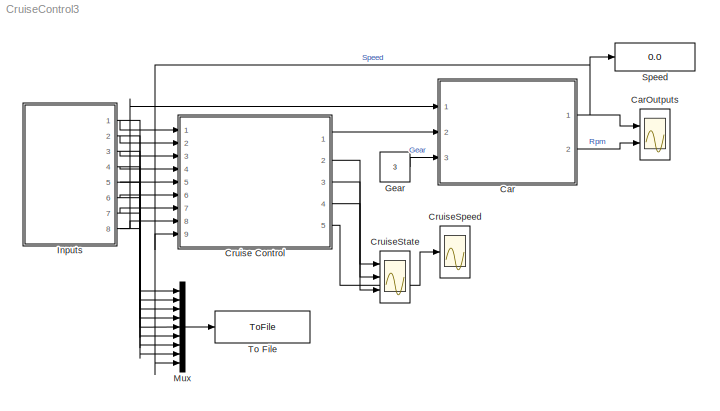
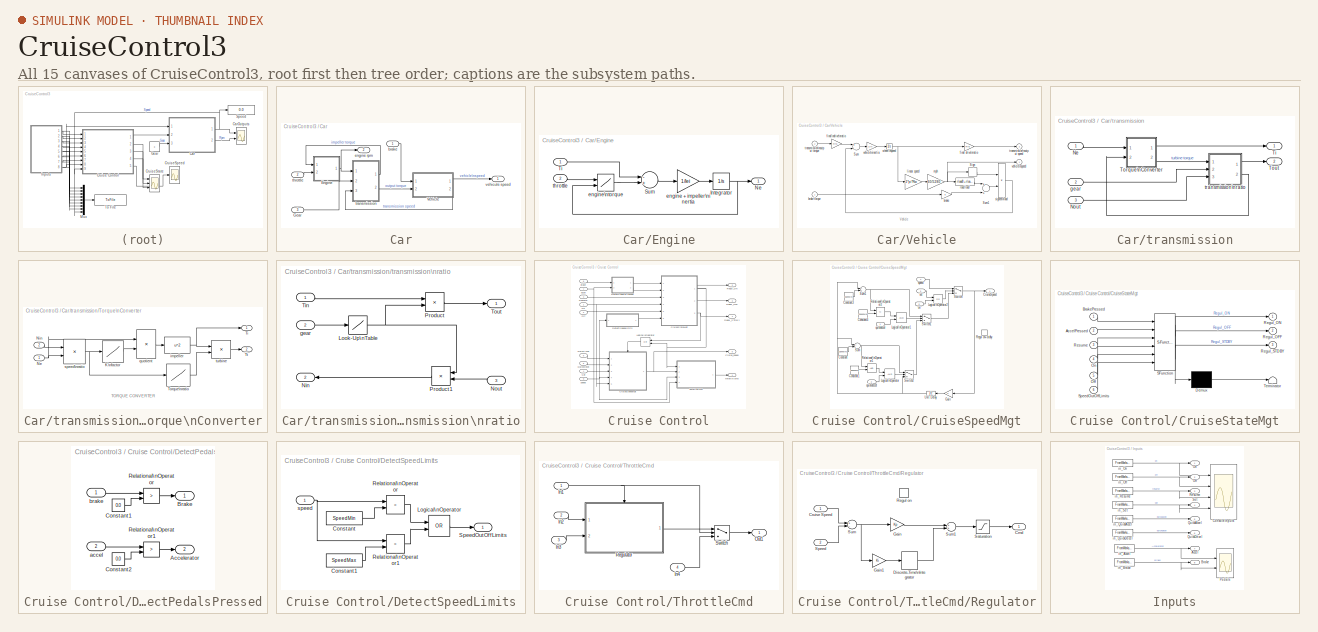
[diagram: thumbnail index - all 15 canvases of the model, root first then tree order]
MODEL CruiseControl3
KIND model
CONFIG AbsTol = auto
CONFIG FixedStep = auto
CONFIG MaxStep = auto
CONFIG MinStep = auto
CONFIG PreLoadFcn = load cruise_data;
CONFIG RelTol = 1e-3
CONFIG Solver = ode45
CONFIG SolverMode = SingleTasking
CONFIG StartTime = 0.0
CONFIG StopTime = 150.0
BLOCK [SubSystem] Car
  MaskDisplay = plot([cos(pi*[0:5:360]/180) + 6], [sin(pi*[0:5:360]/180) + 1.5],[cos(pi*[0:5:360]/180) + 1], [sin(pi*[0:5:360]/180) + 4], [10 7.5 6.75], [3.5 1 1.5], [10 9.75 7.5 6.25 3 1.5 4 5 7.5], [3.5 4.75 5.5 7 8 7 6 4 5.5], [6.5 4], [7 6], [5.25 2], [2 4], [7.5 1 0], [2.5 6 6.5], [7.5 7.25 9.75], [1 2.25 4.75], [2.75 2 0 0 0.25], [7.5 8 6.5 5.25 5], [1.5 0.5], [6.75 6.25])
  MaskIconFrame = on
  MaskIconOpaque = on
  MaskIconRotate = port
  MaskIconUnits = autoscale
  Ports = [3, 2]
  TreatAsAtomicUnit = off
BLOCK [SubSystem] Car/Engine
  Ports = [2, 1]
  TreatAsAtomicUnit = off
BLOCK [Integrator] Car/Engine/Integrator
  InitialCondition = 1000
  LimitOutput = on
  LowerSaturationLimit = 600
  Ports = [1, 1]
  UpperSaturationLimit = 6000
BLOCK [Outport] Car/Engine/Ne
  InitialOutput = 0
BLOCK [Sum] Car/Engine/Sum
  Inputs = -+
  Ports = [2, 1]
BLOCK [Inport] Car/Engine/Ti
BLOCK [Gain] Car/Engine/engine + impeller\ninertia
  Gain = 1/Iei
BLOCK [Lookup2D] Car/Engine/engine\ntorque
  ColumnIndex = nevec
  OutputValues = emap
  RowIndex = thvec
BLOCK [Inport] Car/Engine/throttle
  Port = 2
BLOCK [Inport] Car/Gear
  Port = 3
BLOCK [SubSystem] Car/Vehicle
  MaskCallbackString = |||||
  MaskDescription = vehicle dynamics: torque input from trans., outputs are input speed (transmission output) and vehicle speed
  MaskDisplay = plot([cos(pi*[0:5:360]/180) + 6], [sin(pi*[0:5:360]/180) + 1.5],[cos(pi*[0:5:360]/180) + 1], [sin(pi*[0:5:360]/180) + 4], [10 7.5 6.75], [3.5 1 1.5], [10 9.75 7.5 6.25 3 1.5 4 5 7.5], [3.5 4.75 5.5 7 8 7 6 4 5.5], [6.5 4], [7 6], [5.25 2], [2 4], [7.5 1 0], [2.5 6 6.5], [7.5 7.25 9.75], [1 2.25 4.75], [2.75 2 0 0 0.25], [7.5 8 6.5 5.25 5], [1.5 0.5], [6.75 6.25])
  MaskEnableString = on,on,on,on,on,on
  MaskIconFrame = on
  MaskIconOpaque = on
  MaskIconRotate = port
  MaskIconUnits = autoscale
  MaskPromptString = final drive ratio | drag friction at wheels | aerodynamic drag | wheel radius | vehicle inertia | initial transmission output speed
  MaskStyleString = edit,edit,edit,edit,edit,edit
  MaskToolTipString = on,on,on,on,on,on
  MaskTunableValueString = on,on,on,on,on,on
  MaskType = vehicle model
  MaskValueString = 3.23|40|0.02|1|12.0941|0
  MaskVarAliasString = ,,,,,
  MaskVariables = Rfd=@1;rload0=@2;rload2=@3;Rw=@4;Iv=@5;N20=@6;
  MaskVisibilityString = on,on,on,on,on,on
  Ports = [2, 2]
  ShowPortLabels = off
  TreatAsAtomicUnit = off
BLOCK [Signum] Car/Vehicle/Sign
BLOCK [Sum] Car/Vehicle/Sum
  Inputs = +-
  Ports = [2, 1]
BLOCK [Sum] Car/Vehicle/Sum1
  Ports = [2, 1]
BLOCK [Gain] Car/Vehicle/brake
  Gain = 5
BLOCK [Inport] Car/Vehicle/brake torque
BLOCK [Gain] Car/Vehicle/final drive\nratio
  Gain = Rfd
BLOCK [Gain] Car/Vehicle/final\ndrive\nratio
  Gain = Rfd
BLOCK [Gain] Car/Vehicle/linear speed
  Gain = 2*pi*Rw
BLOCK [Gain] Car/Vehicle/mph
  Gain = 60/5280
BLOCK [Fcn] Car/Vehicle/road load
  Expr = rload0 + rload2*u^2
BLOCK [Product] Car/Vehicle/signed\nload
  Ports = [2, 1]
BLOCK [Outport] Car/Vehicle/transmission\noutput speed
  InitialOutput = 0
  Port = 2
BLOCK [Inport] Car/Vehicle/transmission\noutput torque
  Port = 2
BLOCK [Gain] Car/Vehicle/vehicle\ninertia
  Gain = 1/Iv
BLOCK [Outport] Car/Vehicle/vehicle\nspeed
  InitialOutput = 0
BLOCK [Integrator] Car/Vehicle/wheel\nspeed
  InitialCondition = N20/Rfd
  Ports = [1, 1]
BLOCK [Inport] Car/brake
BLOCK [Outport] Car/engine rpm
  Port = 2
BLOCK [Inport] Car/throttle
  Port = 2
BLOCK [SubSystem] Car/transmission
  Ports = [3, 2]
  TreatAsAtomicUnit = off
BLOCK [Inport] Car/transmission/Ne
BLOCK [Inport] Car/transmission/Nout
  Port = 3
BLOCK [Outport] Car/transmission/Ti
  InitialOutput = 0
BLOCK [SubSystem] Car/transmission/Torque\nConverter
  MaskCallbackString = ||
  MaskDescription = torque converter
  MaskDisplay = plot([cos([90:10:450]*pi/180),.63*cos([90:10:450]*pi/180),.63*cos([90:10:240]*pi/180),cos([240:10:300]*pi/180),.63*cos([300]*pi/180)],[sin([90:10:450]*pi/180),.63*sin([90:10:450]*pi/180)+.1,.63*sin([90:10:240]*pi/180)+.1,sin([240:10:300]*pi/180),.63*sin([300]*pi/180)+.1])
  MaskEnableString = on,on,on
  MaskHelp = Torque converter input and output torques are computed as a function of the input and output speeds
  MaskIconFrame = on
  MaskIconOpaque = on
  MaskIconRotate = none
  MaskIconUnits = autoscale
  MaskPromptString = speed ratio | K factor | torque ratio
  MaskStyleString = edit,edit,edit
  MaskToolTipString = on,on,on
  MaskTunableValueString = on,on,on
  MaskType = torque converter
  MaskValueString = [0    0.1000    0.2000    0.3000    0.4000    0.5000    0.6000 0.7000    0.8000    0.8100    0.8200    0.8300    0.8400    0.8500 0.8600    0.8700    0.8800    0.8900    0.9000    0.9200    0.9400]|[137.4652  137.0650  135.8644  135.6644  137.5653  140.3666  145.2689 152.8725  162.9773  164.2779  166.1788  167.9797  170.0807  172.7820 175.3832  179.5852  183.5871  189.8901  197.6938  215.9024  244...<+209ch>
  MaskVarAliasString = ,,
  MaskVariables = speedratio=@1;Kfactor=@2;Torkratio=@3;
  MaskVisibilityString = on,on,on
  Ports = [2, 2]
  ShowPortLabels = off
  TreatAsAtomicUnit = off
BLOCK [Lookup] Car/transmission/Torque\nConverter/K\nfactor
  InputValues = speedratio
  OutputValues = Kfactor
BLOCK [Inport] Car/transmission/Torque\nConverter/Ne
BLOCK [Inport] Car/transmission/Torque\nConverter/Nin
  Port = 2
BLOCK [Outport] Car/transmission/Torque\nConverter/Ti
  InitialOutput = 0
BLOCK [Lookup] Car/transmission/Torque\nConverter/Torque\nratio
  InputValues = speedratio
  OutputValues = Torkratio
BLOCK [Outport] Car/transmission/Torque\nConverter/Tt
  InitialOutput = 0
  Port = 2
BLOCK [Fcn] Car/transmission/Torque\nConverter/impeller
  Expr = u^2
BLOCK [Product] Car/transmission/Torque\nConverter/quotient
  Inputs = */
  Ports = [2, 1]
BLOCK [Product] Car/transmission/Torque\nConverter/speed\nratio
  Inputs = */
  Ports = [2, 1]
BLOCK [Product] Car/transmission/Torque\nConverter/turbine
  Ports = [2, 1]
BLOCK [Outport] Car/transmission/Tout
  InitialOutput = 0
  Port = 2
BLOCK [Inport] Car/transmission/gear
  Port = 2
BLOCK [SubSystem] Car/transmission/transmission\nratio
  Ports = [3, 2]
  TreatAsAtomicUnit = off
BLOCK [Lookup] Car/transmission/transmission\nratio/Look-Up\nTable
  InputValues = [1 2 3 4]
  OutputValues = [2.393 1.45 1.0 0.677]
BLOCK [Outport] Car/transmission/transmission\nratio/Nin
  InitialOutput = 0
  Port = 2
BLOCK [Inport] Car/transmission/transmission\nratio/Nout
  Port = 3
BLOCK [Product] Car/transmission/transmission\nratio/Product
  Ports = [2, 1]
BLOCK [Product] Car/transmission/transmission\nratio/Product1
  Ports = [2, 1]
BLOCK [Inport] Car/transmission/transmission\nratio/Tin
BLOCK [Outport] Car/transmission/transmission\nratio/Tout
  InitialOutput = 0
BLOCK [Inport] Car/transmission/transmission\nratio/gear
  Port = 2
BLOCK [Outport] Car/vehicule speed
BLOCK [Scope] CarOutputs
  DataFormat = Array
  LimitDataPoints = off
  NumInputPorts = 2
  Ports = [2]
  TickLabels = on
  YMax = 150~6000
  YMin = -25~500
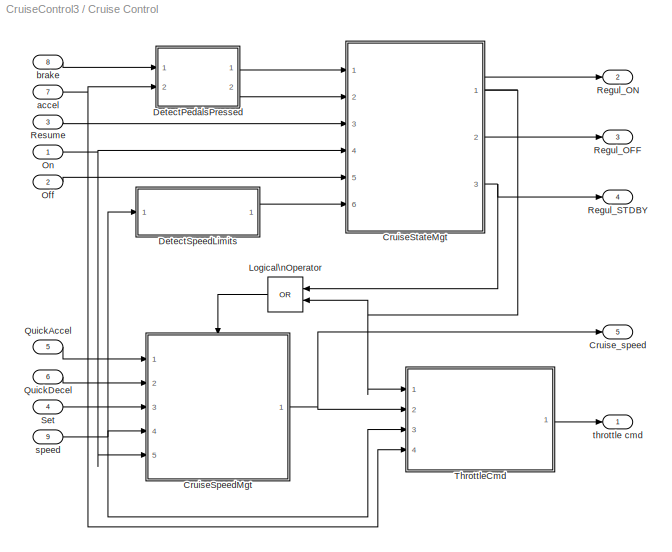
BLOCK [SubSystem] Cruise Control
  Ports = [9, 5]
  TreatAsAtomicUnit = off
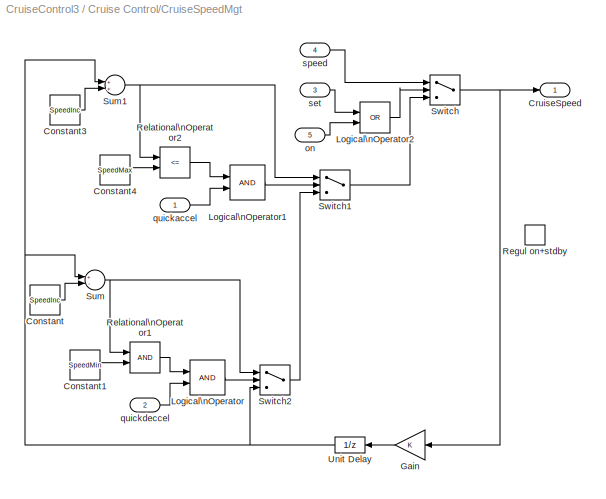
BLOCK [SubSystem] Cruise Control/CruiseSpeedMgt
  Ports = [5, 1, 1]
  TreatAsAtomicUnit = on
BLOCK [Constant] Cruise Control/CruiseSpeedMgt/Constant
  Value = SpeedInc
BLOCK [Constant] Cruise Control/CruiseSpeedMgt/Constant1
  Value = SpeedMin
BLOCK [Constant] Cruise Control/CruiseSpeedMgt/Constant3
  Value = SpeedInc
BLOCK [Constant] Cruise Control/CruiseSpeedMgt/Constant4
  Value = SpeedMax
BLOCK [Outport] Cruise Control/CruiseSpeedMgt/CruiseSpeed
BLOCK [Gain] Cruise Control/CruiseSpeedMgt/Gain
BLOCK [Logic] Cruise Control/CruiseSpeedMgt/Logical\nOperator
  Ports = [2, 1]
BLOCK [Logic] Cruise Control/CruiseSpeedMgt/Logical\nOperator1
  Ports = [2, 1]
BLOCK [Logic] Cruise Control/CruiseSpeedMgt/Logical\nOperator2
  Operator = OR
  Ports = [2, 1]
BLOCK [EnablePort] Cruise Control/CruiseSpeedMgt/Regul on+stdby
  Ports = []
BLOCK [RelationalOperator] Cruise Control/CruiseSpeedMgt/Relational\nOperator1
BLOCK [RelationalOperator] Cruise Control/CruiseSpeedMgt/Relational\nOperator2
  Operator = <=
BLOCK [Sum] Cruise Control/CruiseSpeedMgt/Sum
  Inputs = +-
  Ports = [2, 1]
BLOCK [Sum] Cruise Control/CruiseSpeedMgt/Sum1
  Ports = [2, 1]
BLOCK [Switch] Cruise Control/CruiseSpeedMgt/Switch
  Threshold = 0.5
BLOCK [Switch] Cruise Control/CruiseSpeedMgt/Switch1
  Threshold = 0.5
BLOCK [Switch] Cruise Control/CruiseSpeedMgt/Switch2
  Threshold = 0.5
BLOCK [UnitDelay] Cruise Control/CruiseSpeedMgt/Unit Delay
  SampleTime = 0.1
BLOCK [Inport] Cruise Control/CruiseSpeedMgt/on
  Port = 5
BLOCK [Inport] Cruise Control/CruiseSpeedMgt/quickaccel
BLOCK [Inport] Cruise Control/CruiseSpeedMgt/quickdeccel
  Port = 2
BLOCK [Inport] Cruise Control/CruiseSpeedMgt/set
  Port = 3
BLOCK [Inport] Cruise Control/CruiseSpeedMgt/speed
  Port = 4
BLOCK [SubSystem] Cruise Control/CruiseStateMgt
  MaskDescription = Stateflow diagram
  MaskDisplay = plot(sf('Private','sfblk','xIcon'),sf('Private','sfblk','yIcon'));text(0.5,0,sf('Private', 'sfblk', 'tIcon'),'HorizontalAl','Center','VerticalAl','Bottom');
  MaskIconFrame = off
  MaskIconOpaque = off
  MaskIconRotate = none
  MaskIconUnits = autoscale
  MaskSelfModifiable = on
  MaskType = Stateflow
  Ports = [6, 3]
  TreatAsAtomicUnit = off
BLOCK [Demux] Cruise Control/CruiseStateMgt/ Demux 
  Outputs = 1
  Ports = [1, 1]
BLOCK [S-Function] Cruise Control/CruiseStateMgt/ SFunction 
  FunctionName = sf_sfun
  PortCounts = [6 4]
  Ports = [6, 4]
  Tag = Stateflow S-Function CruiseControl3 1
BLOCK [Terminator] Cruise Control/CruiseStateMgt/ Terminator 
BLOCK [Inport] Cruise Control/CruiseStateMgt/AccelPressed
  Port = 2
  PortDimensions = 1
BLOCK [Inport] Cruise Control/CruiseStateMgt/BrakePressed
  PortDimensions = 1
BLOCK [Inport] Cruise Control/CruiseStateMgt/Off
  Port = 5
  PortDimensions = 1
BLOCK [Inport] Cruise Control/CruiseStateMgt/On
  Port = 4
  PortDimensions = 1
BLOCK [Outport] Cruise Control/CruiseStateMgt/Regul_OFF
  Port = 2
BLOCK [Outport] Cruise Control/CruiseStateMgt/Regul_ON
BLOCK [Outport] Cruise Control/CruiseStateMgt/Regul_STDBY
  Port = 3
BLOCK [Inport] Cruise Control/CruiseStateMgt/Resume
  Port = 3
  PortDimensions = 1
BLOCK [Inport] Cruise Control/CruiseStateMgt/SpeedOutOffLimits
  Port = 6
  PortDimensions = 1
BLOCK [Outport] Cruise Control/Cruise_speed
  Port = 5
BLOCK [SubSystem] Cruise Control/DetectPedalsPressed
  Ports = [2, 2]
  TreatAsAtomicUnit = off
BLOCK [Outport] Cruise Control/DetectPedalsPressed/Accelerator
  Port = 2
BLOCK [Outport] Cruise Control/DetectPedalsPressed/Brake
BLOCK [Constant] Cruise Control/DetectPedalsPressed/Constant1
  Value = 0.0
BLOCK [Constant] Cruise Control/DetectPedalsPressed/Constant2
  Value = 0.0
BLOCK [RelationalOperator] Cruise Control/DetectPedalsPressed/Relational\nOperator
  Operator = >
BLOCK [RelationalOperator] Cruise Control/DetectPedalsPressed/Relational\nOperator1
  Operator = >
BLOCK [Inport] Cruise Control/DetectPedalsPressed/accel
  Port = 2
BLOCK [Inport] Cruise Control/DetectPedalsPressed/brake
BLOCK [SubSystem] Cruise Control/DetectSpeedLimits
  Ports = [1, 1]
  TreatAsAtomicUnit = off
BLOCK [Constant] Cruise Control/DetectSpeedLimits/Constant
  Value = SpeedMin
BLOCK [Constant] Cruise Control/DetectSpeedLimits/Constant1
  Value = SpeedMax
BLOCK [Logic] Cruise Control/DetectSpeedLimits/Logical\nOperator
  Operator = OR
  Ports = [2, 1]
BLOCK [RelationalOperator] Cruise Control/DetectSpeedLimits/Relational\nOperator
  Operator = <
BLOCK [RelationalOperator] Cruise Control/DetectSpeedLimits/Relational\nOperator1
  Operator = >
BLOCK [Outport] Cruise Control/DetectSpeedLimits/SpeedOutOffLimits
BLOCK [Inport] Cruise Control/DetectSpeedLimits/speed
BLOCK [Logic] Cruise Control/Logical\nOperator
  Operator = OR
  Ports = [2, 1]
BLOCK [Inport] Cruise Control/Off
  Port = 2
  SampleTime = Ts
BLOCK [Inport] Cruise Control/On
  SampleTime = Ts
BLOCK [Inport] Cruise Control/QuickAccel
  Port = 5
  SampleTime = Ts
BLOCK [Inport] Cruise Control/QuickDecel
  Port = 6
  SampleTime = Ts
BLOCK [Outport] Cruise Control/Regul_OFF
  Port = 3
BLOCK [Outport] Cruise Control/Regul_ON
  Port = 2
BLOCK [Outport] Cruise Control/Regul_STDBY
  Port = 4
BLOCK [Inport] Cruise Control/Resume
  Port = 3
  SampleTime = Ts
BLOCK [Inport] Cruise Control/Set
  Port = 4
  SampleTime = Ts
BLOCK [SubSystem] Cruise Control/ThrottleCmd
  Ports = [4, 1]
  TreatAsAtomicUnit = off
BLOCK [Inport] Cruise Control/ThrottleCmd/In1
BLOCK [Inport] Cruise Control/ThrottleCmd/In2
  Port = 2
BLOCK [Inport] Cruise Control/ThrottleCmd/In3
  Port = 3
BLOCK [Inport] Cruise Control/ThrottleCmd/In4
  Port = 4
BLOCK [Outport] Cruise Control/ThrottleCmd/Out1
BLOCK [SubSystem] Cruise Control/ThrottleCmd/Regulator
  Ports = [2, 1, 1]
  TreatAsAtomicUnit = on
BLOCK [Outport] Cruise Control/ThrottleCmd/Regulator/Cmd
BLOCK [Inport] Cruise Control/ThrottleCmd/Regulator/Cruise Speed
BLOCK [DiscreteIntegrator] Cruise Control/ThrottleCmd/Regulator/Discrete-Time\nIntegrator
  ExternalReset = none
  InitialConditionSource = internal
  IntegratorMethod = Forward Euler
  LimitOutput = on
  LowerSaturationLimit = -10
  Ports = [1, 1]
  SampleTime = 0.1
  UpperSaturationLimit = 200
BLOCK [Gain] Cruise Control/ThrottleCmd/Regulator/Gain
  Gain = Kp
BLOCK [Gain] Cruise Control/ThrottleCmd/Regulator/Gain1
  Gain = Ki
BLOCK [EnablePort] Cruise Control/ThrottleCmd/Regulator/Regul on
  Ports = []
BLOCK [Saturate] Cruise Control/ThrottleCmd/Regulator/Saturation
  LowerLimit = 0
  UpperLimit = 50
BLOCK [Inport] Cruise Control/ThrottleCmd/Regulator/Speed
  Port = 2
BLOCK [Sum] Cruise Control/ThrottleCmd/Regulator/Sum
  Inputs = +-
  Ports = [2, 1]
BLOCK [Sum] Cruise Control/ThrottleCmd/Regulator/Sum1
  Ports = [2, 1]
BLOCK [Switch] Cruise Control/ThrottleCmd/Switch
  Threshold = 0.5
BLOCK [Inport] Cruise Control/accel
  Port = 7
  SampleTime = Ts
BLOCK [Inport] Cruise Control/brake
  Port = 8
  SampleTime = Ts
BLOCK [Inport] Cruise Control/speed
  Port = 9
  SampleTime = Ts
BLOCK [Outport] Cruise Control/throttle cmd
BLOCK [Scope] CruiseSpeed
  DataFormat = Array
  LimitDataPoints = off
  NumInputPorts = 1
  Ports = [1]
  TickLabels = on
  YMax = 150
  YMin = -25
BLOCK [Scope] CruiseState
  DataFormat = Array
  LimitDataPoints = off
  NumInputPorts = 3
  Ports = [3]
  TickLabels = on
  YMax = 2~2~2
  YMin = -1~-1~-1
BLOCK [Constant] Gear
  Value = 3
BLOCK [SubSystem] Inputs
  Ports = [0, 8]
  TreatAsAtomicUnit = off
BLOCK [Outport] Inputs/Accel
  Port = 7
BLOCK [Outport] Inputs/Brake
  Port = 8
BLOCK [Scope] Inputs/ConsoleInputs
  DataFormat = StructureWithTime
  NumInputPorts = 4
  Ports = [4]
  SaveName = ScopeData1
  TickLabels = on
  YMax = 5~5~5~5
  YMin = -5~-5~-5~-5
BLOCK [Outport] Inputs/Off
  Port = 2
BLOCK [Outport] Inputs/On
BLOCK [Scope] Inputs/Pedals
  DataFormat = StructureWithTime
  NumInputPorts = 2
  Ports = [2]
  SaveName = ScopeData2
  TickLabels = on
  YMax = 100~1
  YMin = -900~-1
BLOCK [Outport] Inputs/QuickAccel
  Port = 5
BLOCK [Outport] Inputs/QuickDecel
  Port = 6
BLOCK [Outport] Inputs/Resume
  Port = 3
BLOCK [Outport] Inputs/Set
  Port = 4
BLOCK [FromWorkspace] Inputs/in_Accel
  OutputAfterFinalValue = Holding final value
  SampleTime = 0.2
  VariableName = [0 0;15 100;25 100;26 0;80 0;85 50;90 50;95 0]
BLOCK [FromWorkspace] Inputs/in_Brake
  Interpolate = off
  OutputAfterFinalValue = Holding final value
  SampleTime = 0.2
  VariableName = [0 0;45 50;55 0]
BLOCK [FromWorkspace] Inputs/in_Off
  Interpolate = off
  OutputAfterFinalValue = Holding final value
  SampleTime = 0.2
  VariableName = [0 0]
BLOCK [FromWorkspace] Inputs/in_On
  Interpolate = off
  OutputAfterFinalValue = Holding final value
  SampleTime = 0.2
  VariableName = [0 0;20 1;21 0]
BLOCK [FromWorkspace] Inputs/in_QuickAccel
  Interpolate = off
  OutputAfterFinalValue = Holding final value
  SampleTime = 0.2
  VariableName = [0 0]
BLOCK [FromWorkspace] Inputs/in_QuickDecel
  Interpolate = off
  OutputAfterFinalValue = Holding final value
  SampleTime = 0.2
  VariableName = [0 0]
BLOCK [FromWorkspace] Inputs/in_Resume
  Interpolate = off
  OutputAfterFinalValue = Holding final value
  SampleTime = 0.2
  VariableName = [0 0;70 1;71 0]
BLOCK [FromWorkspace] Inputs/in_Set
  Interpolate = off
  OutputAfterFinalValue = Holding final value
  SampleTime = 0.2
  VariableName = [0 0;60 1;61 0]
BLOCK [Mux] Mux
  DisplayOption = bar
  Inputs = 9
  Ports = [9, 1]
BLOCK [Display] Speed
  Decimation = 1
  Ports = [1]
BLOCK [ToFile] To File
  Filename = scenario_smlk.mat
  SampleTime = 0.3333
ANNOTATION Car/Vehicle: Vehicle
ANNOTATION Car/transmission/Torque\nConverter: TORQUE CONVERTER
NET Car/Engine/Integrator:1 -> Car/Engine/Ne:1, Car/Engine/engine\ntorque:2
LINE Car/Engine/Sum:1 -> Car/Engine/engine + impeller\ninertia:1
LINE Car/Engine/Ti:1 -> Car/Engine/Sum:1
LINE Car/Engine/engine + impeller\ninertia:1 -> Car/Engine/Integrator:1
LINE Car/Engine/engine\ntorque:1 -> Car/Engine/Sum:2
LINE Car/Engine/throttle:1 -> Car/Engine/engine\ntorque:1
NET Car/Engine:1 -> Car/engine rpm:1, Car/transmission:1
LINE Car/Gear:1 -> Car/transmission:2
LINE Car/Vehicle/Sign:1 -> Car/Vehicle/signed\nload:1
LINE Car/Vehicle/Sum1:1 -> Car/Vehicle/signed\nload:2
LINE Car/Vehicle/Sum:1 -> Car/Vehicle/vehicle\ninertia:1
LINE Car/Vehicle/brake torque:1 -> Car/Vehicle/brake:1
LINE Car/Vehicle/brake:1 -> Car/Vehicle/Sum1:2
LINE Car/Vehicle/final drive\nratio:1 -> Car/Vehicle/transmission\noutput speed:1
LINE Car/Vehicle/final\ndrive\nratio:1 -> Car/Vehicle/Sum:1
LINE Car/Vehicle/linear speed:1 -> Car/Vehicle/mph:1
NET Car/Vehicle/mph:1 -> Car/Vehicle/Sign:1, Car/Vehicle/road load:1, Car/Vehicle/vehicle\nspeed:1
LINE Car/Vehicle/road load:1 -> Car/Vehicle/Sum1:1
LINE Car/Vehicle/signed\nload:1 -> Car/Vehicle/Sum:2
LINE Car/Vehicle/transmission\noutput torque:1 -> Car/Vehicle/final\ndrive\nratio:1
LINE Car/Vehicle/vehicle\ninertia:1 -> Car/Vehicle/wheel\nspeed:1
NET Car/Vehicle/wheel\nspeed:1 -> Car/Vehicle/final drive\nratio:1, Car/Vehicle/linear speed:1
LINE Car/Vehicle:1 -> Car/vehicule speed:1
LINE Car/Vehicle:2 -> Car/transmission:3
LINE Car/brake:1 -> Car/Vehicle:1
LINE Car/throttle:1 -> Car/Engine:2
LINE Car/transmission/Ne:1 -> Car/transmission/Torque\nConverter:1
LINE Car/transmission/Nout:1 -> Car/transmission/transmission\nratio:3
LINE Car/transmission/Torque\nConverter/K\nfactor:1 -> Car/transmission/Torque\nConverter/quotient:2
NET Car/transmission/Torque\nConverter/Ne:1 -> Car/transmission/Torque\nConverter/quotient:1, Car/transmission/Torque\nConverter/speed\nratio:2
LINE Car/transmission/Torque\nConverter/Nin:1 -> Car/transmission/Torque\nConverter/speed\nratio:1
LINE Car/transmission/Torque\nConverter/Torque\nratio:1 -> Car/transmission/Torque\nConverter/turbine:2
NET Car/transmission/Torque\nConverter/impeller:1 -> Car/transmission/Torque\nConverter/Ti:1, Car/transmission/Torque\nConverter/turbine:1
LINE Car/transmission/Torque\nConverter/quotient:1 -> Car/transmission/Torque\nConverter/impeller:1
NET Car/transmission/Torque\nConverter/speed\nratio:1 -> Car/transmission/Torque\nConverter/K\nfactor:1, Car/transmission/Torque\nConverter/Torque\nratio:1
LINE Car/transmission/Torque\nConverter/turbine:1 -> Car/transmission/Torque\nConverter/Tt:1
LINE Car/transmission/Torque\nConverter:1 -> Car/transmission/Ti:1
LINE Car/transmission/Torque\nConverter:2 -> Car/transmission/transmission\nratio:1
LINE Car/transmission/gear:1 -> Car/transmission/transmission\nratio:2
NET Car/transmission/transmission\nratio/Look-Up\nTable:1 -> Car/transmission/transmission\nratio/Product1:1, Car/transmission/transmission\nratio/Product:2
LINE Car/transmission/transmission\nratio/Nout:1 -> Car/transmission/transmission\nratio/Product1:2
LINE Car/transmission/transmission\nratio/Product1:1 -> Car/transmission/transmission\nratio/Nin:1
LINE Car/transmission/transmission\nratio/Product:1 -> Car/transmission/transmission\nratio/Tout:1
LINE Car/transmission/transmission\nratio/Tin:1 -> Car/transmission/transmission\nratio/Product:1
LINE Car/transmission/transmission\nratio/gear:1 -> Car/transmission/transmission\nratio/Look-Up\nTable:1
LINE Car/transmission/transmission\nratio:1 -> Car/transmission/Tout:1
LINE Car/transmission/transmission\nratio:2 -> Car/transmission/Torque\nConverter:2
LINE Car/transmission:1 -> Car/Engine:1
LINE Car/transmission:2 -> Car/Vehicle:2
NET Car:1 -> CarOutputs:1, Cruise Control:9, Mux:9, Speed:1
LINE Car:2 -> CarOutputs:2
LINE Cruise Control/CruiseSpeedMgt/Constant1:1 -> Cruise Control/CruiseSpeedMgt/Relational\nOperator1:2
LINE Cruise Control/CruiseSpeedMgt/Constant3:1 -> Cruise Control/CruiseSpeedMgt/Sum1:2
LINE Cruise Control/CruiseSpeedMgt/Constant4:1 -> Cruise Control/CruiseSpeedMgt/Relational\nOperator2:2
LINE Cruise Control/CruiseSpeedMgt/Constant:1 -> Cruise Control/CruiseSpeedMgt/Sum:2
LINE Cruise Control/CruiseSpeedMgt/Gain:1 -> Cruise Control/CruiseSpeedMgt/Unit Delay:1
LINE Cruise Control/CruiseSpeedMgt/Logical\nOperator1:1 -> Cruise Control/CruiseSpeedMgt/Switch1:2
LINE Cruise Control/CruiseSpeedMgt/Logical\nOperator2:1 -> Cruise Control/CruiseSpeedMgt/Switch:2
LINE Cruise Control/CruiseSpeedMgt/Logical\nOperator:1 -> Cruise Control/CruiseSpeedMgt/Switch2:2
LINE Cruise Control/CruiseSpeedMgt/Relational\nOperator1:1 -> Cruise Control/CruiseSpeedMgt/Logical\nOperator:1
LINE Cruise Control/CruiseSpeedMgt/Relational\nOperator2:1 -> Cruise Control/CruiseSpeedMgt/Logical\nOperator1:1
NET Cruise Control/CruiseSpeedMgt/Sum1:1 -> Cruise Control/CruiseSpeedMgt/Relational\nOperator2:1, Cruise Control/CruiseSpeedMgt/Switch1:1
NET Cruise Control/CruiseSpeedMgt/Sum:1 -> Cruise Control/CruiseSpeedMgt/Relational\nOperator1:1, Cruise Control/CruiseSpeedMgt/Switch2:1
LINE Cruise Control/CruiseSpeedMgt/Switch1:1 -> Cruise Control/CruiseSpeedMgt/Switch:3
LINE Cruise Control/CruiseSpeedMgt/Switch2:1 -> Cruise Control/CruiseSpeedMgt/Switch1:3
NET Cruise Control/CruiseSpeedMgt/Switch:1 -> Cruise Control/CruiseSpeedMgt/CruiseSpeed:1, Cruise Control/CruiseSpeedMgt/Gain:1
NET Cruise Control/CruiseSpeedMgt/Unit Delay:1 -> Cruise Control/CruiseSpeedMgt/Sum1:1, Cruise Control/CruiseSpeedMgt/Sum:1, Cruise Control/CruiseSpeedMgt/Switch2:3
LINE Cruise Control/CruiseSpeedMgt/on:1 -> Cruise Control/CruiseSpeedMgt/Logical\nOperator2:2
LINE Cruise Control/CruiseSpeedMgt/quickaccel:1 -> Cruise Control/CruiseSpeedMgt/Logical\nOperator1:2
LINE Cruise Control/CruiseSpeedMgt/quickdeccel:1 -> Cruise Control/CruiseSpeedMgt/Logical\nOperator:2
LINE Cruise Control/CruiseSpeedMgt/set:1 -> Cruise Control/CruiseSpeedMgt/Logical\nOperator2:1
LINE Cruise Control/CruiseSpeedMgt/speed:1 -> Cruise Control/CruiseSpeedMgt/Switch:1
NET Cruise Control/CruiseSpeedMgt:1 -> Cruise Control/Cruise_speed:1, Cruise Control/ThrottleCmd:2
LINE Cruise Control/CruiseStateMgt/ Demux :1 -> Cruise Control/CruiseStateMgt/ Terminator :1
LINE Cruise Control/CruiseStateMgt/ SFunction :1 -> Cruise Control/CruiseStateMgt/ Demux :1
LINE Cruise Control/CruiseStateMgt/ SFunction :2 -> Cruise Control/CruiseStateMgt/Regul_ON:1
LINE Cruise Control/CruiseStateMgt/ SFunction :3 -> Cruise Control/CruiseStateMgt/Regul_OFF:1
LINE Cruise Control/CruiseStateMgt/ SFunction :4 -> Cruise Control/CruiseStateMgt/Regul_STDBY:1
LINE Cruise Control/CruiseStateMgt/AccelPressed:1 -> Cruise Control/CruiseStateMgt/ SFunction :2
LINE Cruise Control/CruiseStateMgt/BrakePressed:1 -> Cruise Control/CruiseStateMgt/ SFunction :1
LINE Cruise Control/CruiseStateMgt/Off:1 -> Cruise Control/CruiseStateMgt/ SFunction :5
LINE Cruise Control/CruiseStateMgt/On:1 -> Cruise Control/CruiseStateMgt/ SFunction :4
LINE Cruise Control/CruiseStateMgt/Resume:1 -> Cruise Control/CruiseStateMgt/ SFunction :3
LINE Cruise Control/CruiseStateMgt/SpeedOutOffLimits:1 -> Cruise Control/CruiseStateMgt/ SFunction :6
NET Cruise Control/CruiseStateMgt:1 -> Cruise Control/Logical\nOperator:2, Cruise Control/Regul_ON:1, Cruise Control/ThrottleCmd:1
LINE Cruise Control/CruiseStateMgt:2 -> Cruise Control/Regul_OFF:1
NET Cruise Control/CruiseStateMgt:3 -> Cruise Control/Logical\nOperator:1, Cruise Control/Regul_STDBY:1
LINE Cruise Control/DetectPedalsPressed/Constant1:1 -> Cruise Control/DetectPedalsPressed/Relational\nOperator:2
LINE Cruise Control/DetectPedalsPressed/Constant2:1 -> Cruise Control/DetectPedalsPressed/Relational\nOperator1:2
LINE Cruise Control/DetectPedalsPressed/Relational\nOperator1:1 -> Cruise Control/DetectPedalsPressed/Accelerator:1
LINE Cruise Control/DetectPedalsPressed/Relational\nOperator:1 -> Cruise Control/DetectPedalsPressed/Brake:1
LINE Cruise Control/DetectPedalsPressed/accel:1 -> Cruise Control/DetectPedalsPressed/Relational\nOperator1:1
LINE Cruise Control/DetectPedalsPressed/brake:1 -> Cruise Control/DetectPedalsPressed/Relational\nOperator:1
LINE Cruise Control/DetectPedalsPressed:1 -> Cruise Control/CruiseStateMgt:1
LINE Cruise Control/DetectPedalsPressed:2 -> Cruise Control/CruiseStateMgt:2
LINE Cruise Control/DetectSpeedLimits/Constant1:1 -> Cruise Control/DetectSpeedLimits/Relational\nOperator1:2
LINE Cruise Control/DetectSpeedLimits/Constant:1 -> Cruise Control/DetectSpeedLimits/Relational\nOperator:2
LINE Cruise Control/DetectSpeedLimits/Logical\nOperator:1 -> Cruise Control/DetectSpeedLimits/SpeedOutOffLimits:1
LINE Cruise Control/DetectSpeedLimits/Relational\nOperator1:1 -> Cruise Control/DetectSpeedLimits/Logical\nOperator:2
LINE Cruise Control/DetectSpeedLimits/Relational\nOperator:1 -> Cruise Control/DetectSpeedLimits/Logical\nOperator:1
NET Cruise Control/DetectSpeedLimits/speed:1 -> Cruise Control/DetectSpeedLimits/Relational\nOperator1:1, Cruise Control/DetectSpeedLimits/Relational\nOperator:1
LINE Cruise Control/DetectSpeedLimits:1 -> Cruise Control/CruiseStateMgt:6
LINE Cruise Control/Logical\nOperator:1 -> Cruise Control/CruiseSpeedMgt:enable
LINE Cruise Control/Off:1 -> Cruise Control/CruiseStateMgt:5
NET Cruise Control/On:1 -> Cruise Control/CruiseSpeedMgt:5, Cruise Control/CruiseStateMgt:4
LINE Cruise Control/QuickAccel:1 -> Cruise Control/CruiseSpeedMgt:1
LINE Cruise Control/QuickDecel:1 -> Cruise Control/CruiseSpeedMgt:2
LINE Cruise Control/Resume:1 -> Cruise Control/CruiseStateMgt:3
LINE Cruise Control/Set:1 -> Cruise Control/CruiseSpeedMgt:3
NET Cruise Control/ThrottleCmd/In1:1 -> Cruise Control/ThrottleCmd/Regulator:enable, Cruise Control/ThrottleCmd/Switch:2
LINE Cruise Control/ThrottleCmd/In2:1 -> Cruise Control/ThrottleCmd/Regulator:1
LINE Cruise Control/ThrottleCmd/In3:1 -> Cruise Control/ThrottleCmd/Regulator:2
LINE Cruise Control/ThrottleCmd/In4:1 -> Cruise Control/ThrottleCmd/Switch:3
LINE Cruise Control/ThrottleCmd/Regulator/Cruise Speed:1 -> Cruise Control/ThrottleCmd/Regulator/Sum:1
LINE Cruise Control/ThrottleCmd/Regulator/Discrete-Time\nIntegrator:1 -> Cruise Control/ThrottleCmd/Regulator/Sum1:2
LINE Cruise Control/ThrottleCmd/Regulator/Gain1:1 -> Cruise Control/ThrottleCmd/Regulator/Discrete-Time\nIntegrator:1
LINE Cruise Control/ThrottleCmd/Regulator/Gain:1 -> Cruise Control/ThrottleCmd/Regulator/Sum1:1
LINE Cruise Control/ThrottleCmd/Regulator/Saturation:1 -> Cruise Control/ThrottleCmd/Regulator/Cmd:1
LINE Cruise Control/ThrottleCmd/Regulator/Speed:1 -> Cruise Control/ThrottleCmd/Regulator/Sum:2
LINE Cruise Control/ThrottleCmd/Regulator/Sum1:1 -> Cruise Control/ThrottleCmd/Regulator/Saturation:1
NET Cruise Control/ThrottleCmd/Regulator/Sum:1 -> Cruise Control/ThrottleCmd/Regulator/Gain1:1, Cruise Control/ThrottleCmd/Regulator/Gain:1
LINE Cruise Control/ThrottleCmd/Regulator:1 -> Cruise Control/ThrottleCmd/Switch:1
LINE Cruise Control/ThrottleCmd/Switch:1 -> Cruise Control/ThrottleCmd/Out1:1
LINE Cruise Control/ThrottleCmd:1 -> Cruise Control/throttle cmd:1
NET Cruise Control/accel:1 -> Cruise Control/DetectPedalsPressed:2, Cruise Control/ThrottleCmd:4
LINE Cruise Control/brake:1 -> Cruise Control/DetectPedalsPressed:1
NET Cruise Control/speed:1 -> Cruise Control/CruiseSpeedMgt:4, Cruise Control/DetectSpeedLimits:1, Cruise Control/ThrottleCmd:3
LINE Cruise Control:1 -> Car:2
LINE Cruise Control:2 -> CruiseState:1
LINE Cruise Control:3 -> CruiseState:2
LINE Cruise Control:4 -> CruiseState:3
LINE Cruise Control:5 -> CruiseSpeed:1
LINE Gear:1 -> Car:3
NET Inputs/in_Accel:1 -> Inputs/Accel:1, Inputs/Pedals:1
NET Inputs/in_Brake:1 -> Inputs/Brake:1, Inputs/Pedals:2
NET Inputs/in_Off:1 -> Inputs/ConsoleInputs:2, Inputs/Off:1
NET Inputs/in_On:1 -> Inputs/ConsoleInputs:1, Inputs/On:1
LINE Inputs/in_QuickAccel:1 -> Inputs/QuickAccel:1
LINE Inputs/in_QuickDecel:1 -> Inputs/QuickDecel:1
NET Inputs/in_Resume:1 -> Inputs/ConsoleInputs:3, Inputs/Resume:1
NET Inputs/in_Set:1 -> Inputs/ConsoleInputs:4, Inputs/Set:1
NET Inputs:1 -> Cruise Control:1, Mux:1
NET Inputs:2 -> Cruise Control:2, Mux:2
NET Inputs:3 -> Cruise Control:3, Mux:3
NET Inputs:4 -> Cruise Control:4, Mux:4
NET Inputs:5 -> Cruise Control:5, Mux:5
NET Inputs:6 -> Cruise Control:6, Mux:6
NET Inputs:7 -> Cruise Control:7, Mux:7
NET Inputs:8 -> Car:1, Cruise Control:8, Mux:8
LINE Mux:1 -> To File:1
note: NET lines group one-source signal fan-out (src -> all destinations, sorted); 1:1 wires keep LINE
CHART Cruise Control/CruiseStateMgt states=6 transitions=15
  STATE_LABEL 'Disabled\\nentry:\\nRegul_OFF = 1;\\nRegul_ON = 0;\\nRegul_STDBY = 0'
  STATE_LABEL 'On\\nentry:\\nRegul_OFF = 0;\\nRegul_ON = 1;\\nRegul_STDBY = 0'
  STATE_LABEL 'StandBy\\nentry:\\nRegul_OFF = 0;\\nRegul_ON = 0;\\nRegul_STDBY = 1'
  STATE_LABEL 'Interrupted\\nentry:\\nRegul_OFF = 1;\\nRegul_ON = 0;\\nRegul_STDBY = 1'
  STATE_LABEL 'Regulation'
  STATE_LABEL 'Enabled'
